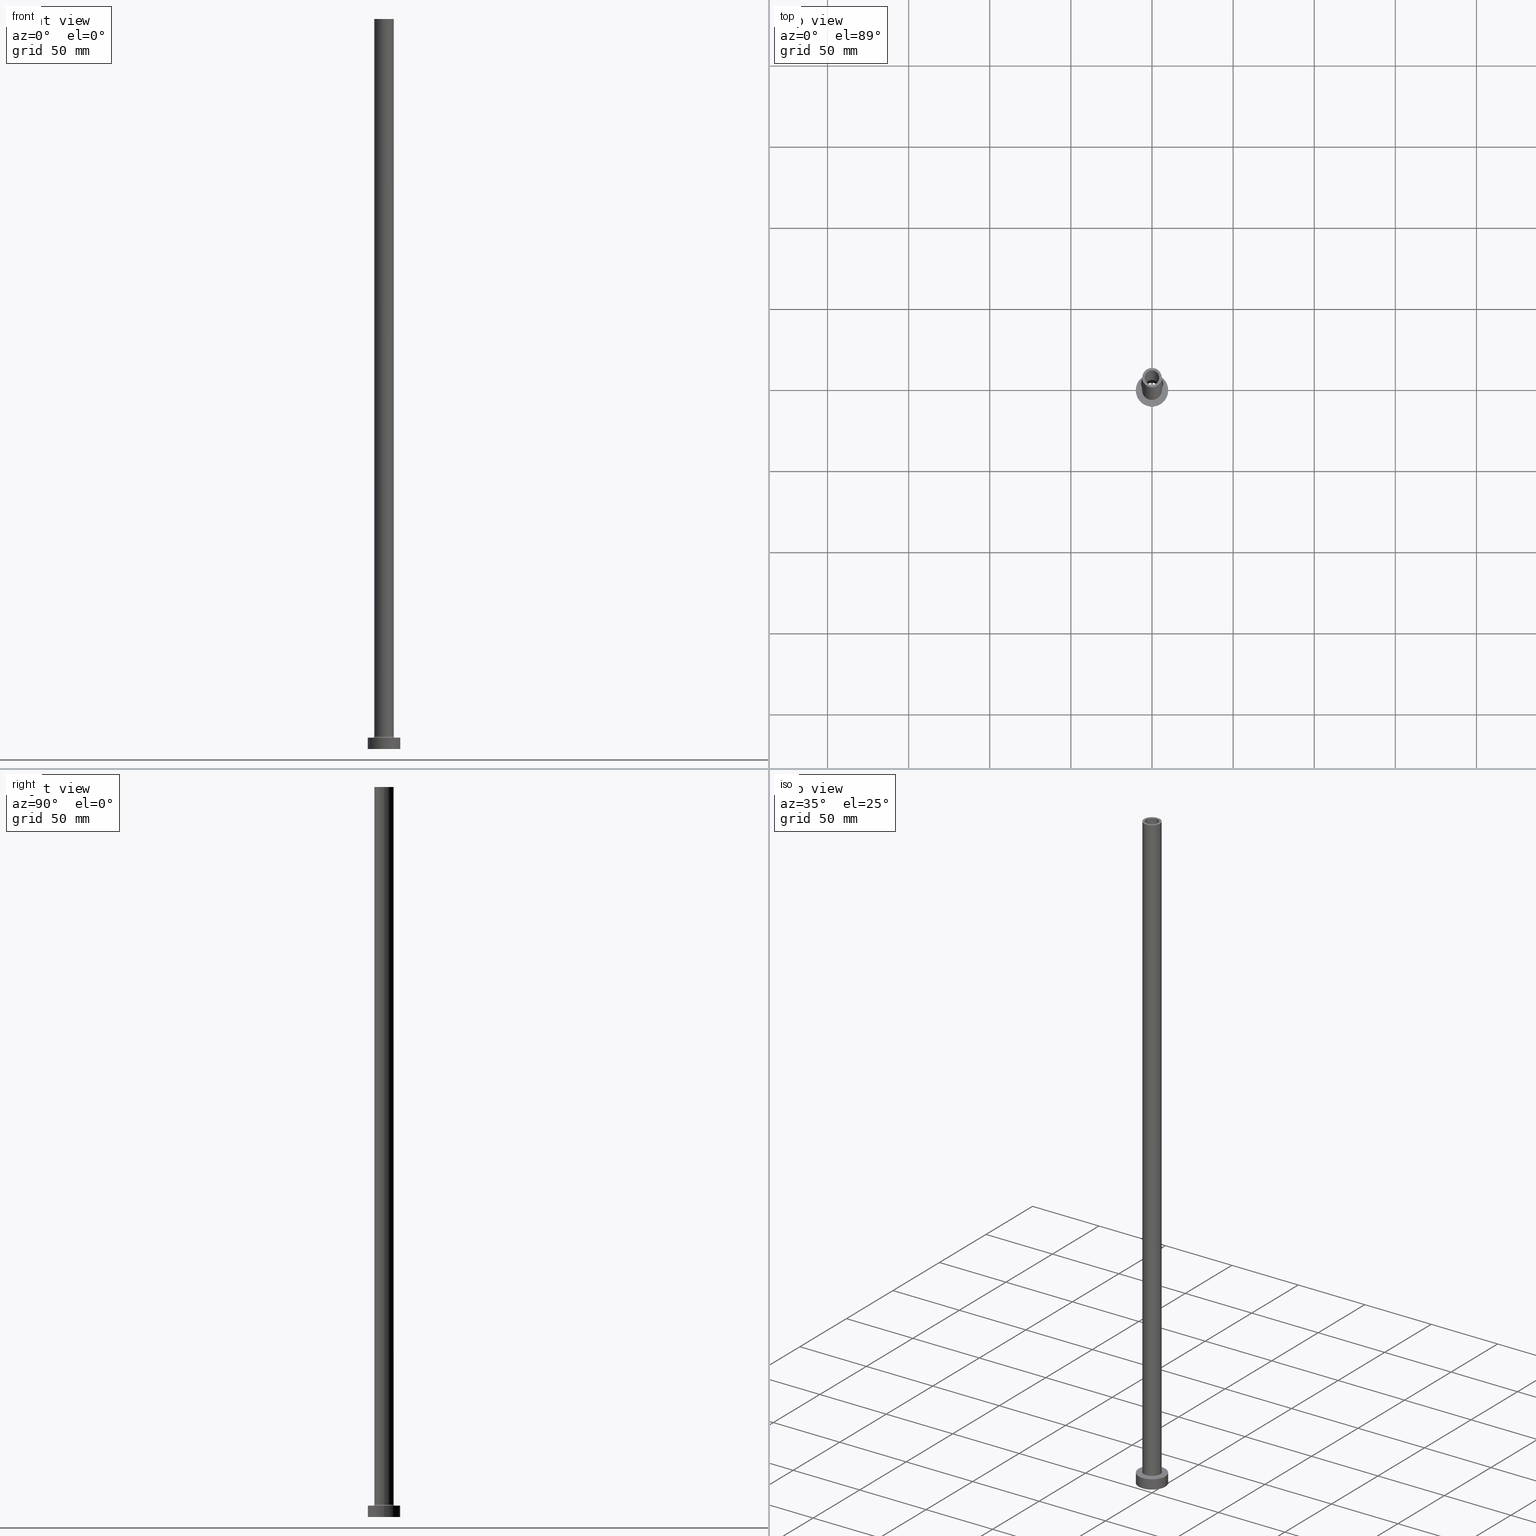
[diagram: canonical four-view strip — front | top / right | iso, engineering-drawing reading convention]
A machine part, canonical four-view strip (front | top / right | iso — engineering-drawing reading convention). The complete STEP part file that produces these views, byte-faithful:
ISO-10303-21;
HEADER;
FILE_DESCRIPTION (( 'STEP AP203' ),
    '1' );
FILE_NAME ('4599.STEP',
    '2023-02-13T11:01:02',
    ( '' ),
    ( '' ),
    'SwSTEP 2.0',
    'SolidWorks 2019',
    '' );
FILE_SCHEMA (( 'CONFIG_CONTROL_DESIGN' ));
ENDSEC;

DATA;
#1 = EDGE_CURVE ( 'NONE', #226, #153, #145, .T. ) ;
#2 = EDGE_LOOP ( 'NONE', ( #355, #202, #455, #453 ) ) ;
#3 = CLOSED_SHELL ( 'NONE', ( #345, #85, #403, #406, #24, #58, #232, #421, #374, #436, #386, #312, #203, #224 ) ) ;
#4 =( NAMED_UNIT ( * ) PLANE_ANGLE_UNIT ( ) SI_UNIT ( $, .RADIAN. ) );
#5 = CIRCLE ( 'NONE', #347, 4.650000000000000355 ) ;
#6 = DIRECTION ( 'NONE',  ( 0.000000000000000000, 0.000000000000000000, -1.000000000000000000 ) ) ;
#7 = EDGE_CURVE ( 'NONE', #283, #370, #154, .T. ) ;
#8 = ADVANCED_BREP_SHAPE_REPRESENTATION ( '4599', ( #129, #88 ), #11 ) ;
#9 = DIRECTION ( 'NONE',  ( -1.000000000000000000, 0.000000000000000000, 0.000000000000000000 ) ) ;
#10 = DIRECTION ( 'NONE',  ( 1.000000000000000000, 0.000000000000000000, 0.000000000000000000 ) ) ;
#11 =( GEOMETRIC_REPRESENTATION_CONTEXT ( 3 ) GLOBAL_UNCERTAINTY_ASSIGNED_CONTEXT ( ( #215 ) ) GLOBAL_UNIT_ASSIGNED_CONTEXT ( ( #124, #4, #433 ) ) REPRESENTATION_CONTEXT ( 'NONE', 'WORKASPACE' ) );
#12 = APPROVAL_PERSON_ORGANIZATION ( #378, #103, #73 ) ;
#13 = PRODUCT_RELATED_PRODUCT_CATEGORY ( 'detail', '', ( #166 ) ) ;
#14 = DIRECTION ( 'NONE',  ( 1.000000000000000000, 0.000000000000000000, 0.000000000000000000 ) ) ;
#15 = DIRECTION ( 'NONE',  ( -1.000000000000000000, 1.224646799147353454E-16, 0.000000000000000000 ) ) ;
#16 = PERSON_AND_ORGANIZATION_ROLE ( 'design_owner' ) ;
#17 = DIRECTION ( 'NONE',  ( -0.000000000000000000, -0.000000000000000000, -1.000000000000000000 ) ) ;
#18 = EDGE_LOOP ( 'NONE', ( #35, #78 ) ) ;
#19 = DATE_AND_TIME ( #348, #172 ) ;
#20 = DIRECTION ( 'NONE',  ( 0.000000000000000000, -1.000000000000000000, 0.000000000000000000 ) ) ;
#21 = TOROIDAL_SURFACE ( 'NONE', #164, 6.700000000000001066, 0.6999999999999999556 ) ;
#22 = PERSON_AND_ORGANIZATION ( #138, #233 ) ;
#23 = APPROVAL_PERSON_ORGANIZATION ( #274, #276, #92 ) ;
#24 = ADVANCED_FACE ( 'NONE', ( #113 ), #392, .T. ) ;
#25 = CARTESIAN_POINT ( 'NONE',  ( 4.650000000000000355, 5.694607616035192869E-16, 0.000000000000000000 ) ) ;
#26 = COORDINATED_UNIVERSAL_TIME_OFFSET ( 1, 0, .AHEAD. ) ;
#27 = DIRECTION ( 'NONE',  ( 0.000000000000000000, 0.000000000000000000, -1.000000000000000000 ) ) ;
#28 = CIRCLE ( 'NONE', #259, 0.7000000000000000666 ) ;
#29 = EDGE_CURVE ( 'NONE', #427, #420, #400, .T. ) ;
#30 = DIRECTION ( 'NONE',  ( 0.000000000000000000, 0.000000000000000000, -1.000000000000000000 ) ) ;
#31 = DATE_AND_TIME ( #459, #101 ) ;
#32 = DIRECTION ( 'NONE',  ( -0.000000000000000000, -0.000000000000000000, -1.000000000000000000 ) ) ;
#33 = ORIENTED_EDGE ( 'NONE', *, *, #336, .F. ) ;
#34 = DIRECTION ( 'NONE',  ( 0.000000000000000000, 0.000000000000000000, 1.000000000000000000 ) ) ;
#35 = ORIENTED_EDGE ( 'NONE', *, *, #417, .F. ) ;
#36 = EDGE_LOOP ( 'NONE', ( #360, #461, #394, #287 ) ) ;
#37 = CARTESIAN_POINT ( 'NONE',  ( 0.000000000000000000, 0.000000000000000000, 450.0000000000000000 ) ) ;
#38 = ORIENTED_EDGE ( 'NONE', *, *, #369, .T. ) ;
#39 = VERTEX_POINT ( 'NONE', #122 ) ;
#40 = PLANE ( 'NONE',  #416 ) ;
#41 = DIRECTION ( 'NONE',  ( 1.000000000000000000, 0.000000000000000000, 0.000000000000000000 ) ) ;
#42 = FACE_BOUND ( 'NONE', #317, .T. ) ;
#43 = EDGE_CURVE ( 'NONE', #226, #39, #333, .T. ) ;
#44 = CIRCLE ( 'NONE', #366, 4.500000000000000000 ) ;
#45 = DIRECTION ( 'NONE',  ( -1.000000000000000000, 0.000000000000000000, 0.000000000000000000 ) ) ;
#46 = EDGE_LOOP ( 'NONE', ( #117, #38 ) ) ;
#47 = AXIS2_PLACEMENT_3D ( 'NONE', #297, #438, #120 ) ;
#48 = ORIENTED_EDGE ( 'NONE', *, *, #196, .T. ) ;
#49 = CIRCLE ( 'NONE', #373, 6.000000000000000888 ) ;
#50 = SECURITY_CLASSIFICATION ( '', '', #241 ) ;
#51 = PRODUCT_DEFINITION ( 'NEZN�M�', '', #185, #230 ) ;
#52 = PERSON_AND_ORGANIZATION_ROLE ( 'creator' ) ;
#53 = VERTEX_POINT ( 'NONE', #308 ) ;
#54 = DATE_TIME_ROLE ( 'classification_date' ) ;
#55 = DIRECTION ( 'NONE',  ( 0.000000000000000000, 0.000000000000000000, 1.000000000000000000 ) ) ;
#56 = VECTOR ( 'NONE', #194, 1000.000000000000000 ) ;
#57 = CARTESIAN_POINT ( 'NONE',  ( -4.650000000000000355, 0.000000000000000000, 0.000000000000000000 ) ) ;
#58 = ADVANCED_FACE ( 'NONE', ( #234 ), #331, .T. ) ;
#59 = APPLICATION_CONTEXT ( 'configuration controlled 3d designs of mechanical parts and assemblies' ) ;
#60 = AXIS2_PLACEMENT_3D ( 'NONE', #405, #306, #14 ) ;
#61 = APPROVAL_DATE_TIME ( #100, #276 ) ;
#62 = LINE ( 'NONE', #140, #439 ) ;
#63 = PERSON_AND_ORGANIZATION_ROLE ( 'creator' ) ;
#64 = DIRECTION ( 'NONE',  ( 0.000000000000000000, 0.000000000000000000, 1.000000000000000000 ) ) ;
#65 = EDGE_CURVE ( 'NONE', #153, #226, #302, .T. ) ;
#66 = CARTESIAN_POINT ( 'NONE',  ( 0.000000000000000000, 0.000000000000000000, 418.1521861300697651 ) ) ;
#67 = AXIS2_PLACEMENT_3D ( 'NONE', #290, #292, #426 ) ;
#68 = ORIENTED_EDGE ( 'NONE', *, *, #147, .F. ) ;
#69 = CIRCLE ( 'NONE', #280, 4.650000000000000355 ) ;
#70 = DIRECTION ( 'NONE',  ( 0.000000000000000000, 0.000000000000000000, 1.000000000000000000 ) ) ;
#71 = APPROVAL_PERSON_ORGANIZATION ( #135, #244, #211 ) ;
#72 = ORIENTED_EDGE ( 'NONE', *, *, #91, .F. ) ;
#73 = APPROVAL_ROLE ( '' ) ;
#74 = DIRECTION ( 'NONE',  ( 0.000000000000000000, 0.000000000000000000, 1.000000000000000000 ) ) ;
#75 = VERTEX_POINT ( 'NONE', #229 ) ;
#76 = EDGE_CURVE ( 'NONE', #191, #420, #413, .T. ) ;
#77 = ORIENTED_EDGE ( 'NONE', *, *, #65, .F. ) ;
#78 = ORIENTED_EDGE ( 'NONE', *, *, #298, .F. ) ;
#79 = DIRECTION ( 'NONE',  ( 1.000000000000000000, 0.000000000000000000, 0.000000000000000000 ) ) ;
#80 = CARTESIAN_POINT ( 'NONE',  ( 0.000000000000000000, 0.000000000000000000, 7.000000000000000000 ) ) ;
#81 = EDGE_LOOP ( 'NONE', ( #323, #240 ) ) ;
#82 = FACE_BOUND ( 'NONE', #81, .T. ) ;
#83 = ORIENTED_EDGE ( 'NONE', *, *, #384, .T. ) ;
#84 = EDGE_LOOP ( 'NONE', ( #72, #425, #262, #410 ) ) ;
#85 = ADVANCED_FACE ( 'NONE', ( #365 ), #160, .F. ) ;
#86 = CARTESIAN_POINT ( 'NONE',  ( 0.000000000000000000, 0.000000000000000000, 405.0000000000000000 ) ) ;
#87 = CARTESIAN_POINT ( 'NONE',  ( 0.000000000000000000, 0.000000000000000000, 7.699999999999985079 ) ) ;
#88 = AXIS2_PLACEMENT_3D ( 'NONE', #414, #206, #343 ) ;
#89 = DIRECTION ( 'NONE',  ( -0.000000000000000000, -0.000000000000000000, -1.000000000000000000 ) ) ;
#90 = CARTESIAN_POINT ( 'NONE',  ( -10.00000000000000000, 0.000000000000000000, 7.000000000000000000 ) ) ;
#91 = EDGE_CURVE ( 'NONE', #370, #75, #98, .T. ) ;
#92 = APPROVAL_ROLE ( '' ) ;
#93 = AXIS2_PLACEMENT_3D ( 'NONE', #269, #332, #45 ) ;
#94 = COORDINATED_UNIVERSAL_TIME_OFFSET ( 1, 0, .AHEAD. ) ;
#95 = DIRECTION ( 'NONE',  ( -1.000000000000000000, 0.000000000000000000, 0.000000000000000000 ) ) ;
#96 = CC_DESIGN_PERSON_AND_ORGANIZATION_ASSIGNMENT ( #310, #125, ( #185 ) ) ;
#97 = MECHANICAL_CONTEXT ( 'NONE', #111, 'mechanical' ) ;
#98 = LINE ( 'NONE', #242, #335 ) ;
#99 = AXIS2_PLACEMENT_3D ( 'NONE', #173, #137, #95 ) ;
#100 = DATE_AND_TIME ( #380, #246 ) ;
#101 = LOCAL_TIME ( 12, 1, 2.000000000000000000, #183 ) ;
#102 = CARTESIAN_POINT ( 'NONE',  ( -10.00000000000000000, 0.000000000000000000, 7.000000000000000000 ) ) ;
#103 = APPROVAL ( #252, 'NEUR�EN�' ) ;
#104 = ORIENTED_EDGE ( 'NONE', *, *, #265, .T. ) ;
#105 = CARTESIAN_POINT ( 'NONE',  ( 0.000000000000000000, 0.000000000000000000, 450.0000000000000000 ) ) ;
#106 = APPROVAL_DATE_TIME ( #31, #103 ) ;
#107 = CARTESIAN_POINT ( 'NONE',  ( 0.000000000000000000, 0.000000000000000000, 7.000000000000000000 ) ) ;
#108 = CIRCLE ( 'NONE', #139, 6.700000000000001066 ) ;
#109 = ORIENTED_EDGE ( 'NONE', *, *, #141, .T. ) ;
#110 = EDGE_CURVE ( 'NONE', #370, #283, #390, .T. ) ;
#111 = APPLICATION_CONTEXT ( 'configuration controlled 3d designs of mechanical parts and assemblies' ) ;
#112 = ORIENTED_EDGE ( 'NONE', *, *, #321, .T. ) ;
#113 = FACE_OUTER_BOUND ( 'NONE', #424, .T. ) ;
#114 = ORIENTED_EDGE ( 'NONE', *, *, #7, .T. ) ;
#115 = DIRECTION ( 'NONE',  ( 1.000000000000000000, 0.000000000000000000, 0.000000000000000000 ) ) ;
#116 = VECTOR ( 'NONE', #279, 1000.000000000000000 ) ;
#117 = ORIENTED_EDGE ( 'NONE', *, *, #130, .T. ) ;
#118 = EDGE_LOOP ( 'NONE', ( #187, #342 ) ) ;
#119 = CARTESIAN_POINT ( 'NONE',  ( -6.000000000000000888, 0.000000000000000000, 7.699999999999985079 ) ) ;
#120 = DIRECTION ( 'NONE',  ( 1.000000000000000000, 0.000000000000000000, 0.000000000000000000 ) ) ;
#121 = DIRECTION ( 'NONE',  ( 0.000000000000000000, 0.000000000000000000, -1.000000000000000000 ) ) ;
#122 = CARTESIAN_POINT ( 'NONE',  ( -10.00000000000000000, 0.000000000000000000, 0.000000000000000000 ) ) ;
#123 = ORIENTED_EDGE ( 'NONE', *, *, #29, .F. ) ;
#124 =( LENGTH_UNIT ( ) NAMED_UNIT ( * ) SI_UNIT ( .MILLI., .METRE. ) );
#125 = PERSON_AND_ORGANIZATION_ROLE ( 'design_supplier' ) ;
#126 = DIRECTION ( 'NONE',  ( 0.000000000000000000, 0.000000000000000000, 1.000000000000000000 ) ) ;
#127 = ORIENTED_EDGE ( 'NONE', *, *, #452, .F. ) ;
#128 = CIRCLE ( 'NONE', #60, 4.650000000000000355 ) ;
#129 = MANIFOLD_SOLID_BREP ( 'Odebrat vysunut�m4', #3 ) ;
#130 = EDGE_CURVE ( 'NONE', #388, #75, #44, .T. ) ;
#131 = CC_DESIGN_SECURITY_CLASSIFICATION ( #50, ( #185 ) ) ;
#132 = PLANE ( 'NONE',  #245 ) ;
#133 = CARTESIAN_POINT ( 'NONE',  ( 6.000000000000000888, 7.347880794884120722E-16, 450.0000000000000000 ) ) ;
#134 = ORIENTED_EDGE ( 'NONE', *, *, #141, .F. ) ;
#135 = PERSON_AND_ORGANIZATION ( #138, #233 ) ;
#136 = AXIS2_PLACEMENT_3D ( 'NONE', #301, #121, #268 ) ;
#137 = DIRECTION ( 'NONE',  ( 0.000000000000000000, 0.000000000000000000, -1.000000000000000000 ) ) ;
#138 = PERSON ( 'NEUR�EN�', 'NEUR�EN�', 'NEUR�EN�', ('NEUR�EN�'), ('NEUR�EN�'), ('NEUR�EN�') ) ;
#139 = AXIS2_PLACEMENT_3D ( 'NONE', #107, #32, #318 ) ;
#140 = CARTESIAN_POINT ( 'NONE',  ( -6.000000000000000888, 0.000000000000000000, 450.0000000000000000 ) ) ;
#141 = EDGE_CURVE ( 'NONE', #284, #39, #423, .T. ) ;
#142 = VERTEX_POINT ( 'NONE', #57 ) ;
#143 = CARTESIAN_POINT ( 'NONE',  ( 0.000000000000000000, 0.000000000000000000, 450.0000000000000000 ) ) ;
#144 = DIRECTION ( 'NONE',  ( -1.000000000000000000, 0.000000000000000000, 0.000000000000000000 ) ) ;
#145 = CIRCLE ( 'NONE', #285, 10.00000000000000000 ) ;
#146 = ORIENTED_EDGE ( 'NONE', *, *, #196, .F. ) ;
#147 = EDGE_CURVE ( 'NONE', #305, #142, #272, .T. ) ;
#148 = SHAPE_DEFINITION_REPRESENTATION ( #371, #8 ) ;
#149 = ORIENTED_EDGE ( 'NONE', *, *, #257, .F. ) ;
#150 = FACE_OUTER_BOUND ( 'NONE', #198, .T. ) ;
#151 = CARTESIAN_POINT ( 'NONE',  ( 0.000000000000000000, 0.000000000000000000, 7.000000000000000000 ) ) ;
#152 = ORIENTED_EDGE ( 'NONE', *, *, #76, .T. ) ;
#153 = VERTEX_POINT ( 'NONE', #451 ) ;
#154 = CIRCLE ( 'NONE', #67, 4.500000000000000000 ) ;
#155 = ORIENTED_EDGE ( 'NONE', *, *, #361, .F. ) ;
#156 = DIRECTION ( 'NONE',  ( 0.000000000000000000, 0.000000000000000000, 1.000000000000000000 ) ) ;
#157 = AXIS2_PLACEMENT_3D ( 'NONE', #105, #207, #445 ) ;
#158 = CARTESIAN_POINT ( 'NONE',  ( -4.500000000000000000, 0.000000000000000000, 405.0000000000000000 ) ) ;
#159 = CARTESIAN_POINT ( 'NONE',  ( 0.000000000000000000, 0.000000000000000000, 0.000000000000000000 ) ) ;
#160 = CYLINDRICAL_SURFACE ( 'NONE', #136, 4.650000000000000355 ) ;
#161 = CC_DESIGN_PERSON_AND_ORGANIZATION_ASSIGNMENT ( #340, #52, ( #185 ) ) ;
#162 = DIRECTION ( 'NONE',  ( 0.000000000000000000, 0.000000000000000000, 1.000000000000000000 ) ) ;
#163 = DIRECTION ( 'NONE',  ( 1.224646799147353207E-16, 1.000000000000000000, -0.000000000000000000 ) ) ;
#164 = AXIS2_PLACEMENT_3D ( 'NONE', #362, #300, #10 ) ;
#165 = VERTEX_POINT ( 'NONE', #25 ) ;
#166 = PRODUCT ( '4599', '4599', '', ( #97 ) ) ;
#167 = DIRECTION ( 'NONE',  ( 0.000000000000000000, 0.000000000000000000, 1.000000000000000000 ) ) ;
#168 = ORIENTED_EDGE ( 'NONE', *, *, #169, .T. ) ;
#169 = EDGE_CURVE ( 'NONE', #309, #221, #339, .T. ) ;
#170 = COORDINATED_UNIVERSAL_TIME_OFFSET ( 1, 0, .AHEAD. ) ;
#171 = DIRECTION ( 'NONE',  ( 1.000000000000000000, 0.000000000000000000, 0.000000000000000000 ) ) ;
#172 = LOCAL_TIME ( 12, 1, 2.000000000000000000, #236 ) ;
#173 = CARTESIAN_POINT ( 'NONE',  ( 0.000000000000000000, 0.000000000000000000, 450.0000000000000000 ) ) ;
#174 = APPLICATION_PROTOCOL_DEFINITION ( 'international standard', 'config_control_design', 1994, #59 ) ;
#175 = DIRECTION ( 'NONE',  ( 1.000000000000000000, 0.000000000000000000, 0.000000000000000000 ) ) ;
#176 = EDGE_CURVE ( 'NONE', #309, #427, #62, .T. ) ;
#177 = CARTESIAN_POINT ( 'NONE',  ( -4.650000000000000355, 0.000000000000000000, 418.1521861300697651 ) ) ;
#178 = FACE_OUTER_BOUND ( 'NONE', #444, .T. ) ;
#179 = CC_DESIGN_PERSON_AND_ORGANIZATION_ASSIGNMENT ( #209, #63, ( #51 ) ) ;
#180 = ORIENTED_EDGE ( 'NONE', *, *, #354, .F. ) ;
#181 = CARTESIAN_POINT ( 'NONE',  ( -6.000000000000000888, 0.000000000000000000, 450.0000000000000000 ) ) ;
#182 = ORIENTED_EDGE ( 'NONE', *, *, #417, .T. ) ;
#183 = COORDINATED_UNIVERSAL_TIME_OFFSET ( 1, 0, .AHEAD. ) ;
#184 = AXIS2_PLACEMENT_3D ( 'NONE', #349, #239, #243 ) ;
#185 = PRODUCT_DEFINITION_FORMATION_WITH_SPECIFIED_SOURCE ( 'LIBOVOLN�', '', #166, .NOT_KNOWN. ) ;
#186 = ORIENTED_EDGE ( 'NONE', *, *, #176, .F. ) ;
#187 = ORIENTED_EDGE ( 'NONE', *, *, #1, .T. ) ;
#188 = CC_DESIGN_DATE_AND_TIME_ASSIGNMENT ( #375, #54, ( #50 ) ) ;
#189 = CARTESIAN_POINT ( 'NONE',  ( 10.00000000000000000, 1.224646799147353256E-15, 7.000000000000000000 ) ) ;
#190 = ORIENTED_EDGE ( 'NONE', *, *, #257, .T. ) ;
#191 = VERTEX_POINT ( 'NONE', #418 ) ;
#192 = DIRECTION ( 'NONE',  ( -0.000000000000000000, -0.000000000000000000, -1.000000000000000000 ) ) ;
#193 = CARTESIAN_POINT ( 'NONE',  ( 4.500000000000000000, 5.510910596163087583E-16, 450.0000000000000000 ) ) ;
#194 = DIRECTION ( 'NONE',  ( -0.000000000000000000, -0.000000000000000000, -1.000000000000000000 ) ) ;
#195 = LINE ( 'NONE', #225, #457 ) ;
#196 = EDGE_CURVE ( 'NONE', #142, #165, #5, .T. ) ;
#197 = DIRECTION ( 'NONE',  ( -1.000000000000000000, 0.000000000000000000, 0.000000000000000000 ) ) ;
#198 = EDGE_LOOP ( 'NONE', ( #263, #249, #326, #48 ) ) ;
#199 = CARTESIAN_POINT ( 'NONE',  ( 0.000000000000000000, 0.000000000000000000, 450.0000000000000000 ) ) ;
#200 = AXIS2_PLACEMENT_3D ( 'NONE', #460, #223, #367 ) ;
#201 = CC_DESIGN_APPROVAL ( #103, ( #50 ) ) ;
#202 = ORIENTED_EDGE ( 'NONE', *, *, #169, .F. ) ;
#203 = ADVANCED_FACE ( 'NONE', ( #247, #313 ), #132, .F. ) ;
#204 = CALENDAR_DATE ( 2023, 13, 2 ) ;
#205 = DIRECTION ( 'NONE',  ( 1.000000000000000000, 0.000000000000000000, -0.000000000000000000 ) ) ;
#206 = DIRECTION ( 'NONE',  ( 0.000000000000000000, 0.000000000000000000, 1.000000000000000000 ) ) ;
#207 = DIRECTION ( 'NONE',  ( 0.000000000000000000, 0.000000000000000000, 1.000000000000000000 ) ) ;
#208 = VECTOR ( 'NONE', #253, 1000.000000000000000 ) ;
#209 = PERSON_AND_ORGANIZATION ( #138, #233 ) ;
#210 = DIRECTION ( 'NONE',  ( 0.000000000000000000, 0.000000000000000000, 1.000000000000000000 ) ) ;
#211 = APPROVAL_ROLE ( '' ) ;
#212 = CARTESIAN_POINT ( 'NONE',  ( 0.000000000000000000, 0.000000000000000000, 7.000000000000000000 ) ) ;
#213 = DIRECTION ( 'NONE',  ( 0.000000000000000000, 0.000000000000000000, -1.000000000000000000 ) ) ;
#214 = EDGE_LOOP ( 'NONE', ( #152, #322 ) ) ;
#215 = UNCERTAINTY_MEASURE_WITH_UNIT (LENGTH_MEASURE( 1.000000000000000082E-05 ), #124, 'distance_accuracy_value', 'NONE');
#216 = EDGE_CURVE ( 'NONE', #427, #53, #393, .T. ) ;
#217 = CARTESIAN_POINT ( 'NONE',  ( 0.000000000000000000, 0.000000000000000000, 405.0000000000000000 ) ) ;
#218 = EDGE_LOOP ( 'NONE', ( #168, #104 ) ) ;
#219 = DIRECTION ( 'NONE',  ( 0.000000000000000000, 0.000000000000000000, 1.000000000000000000 ) ) ;
#220 = AXIS2_PLACEMENT_3D ( 'NONE', #270, #399, #434 ) ;
#221 = VERTEX_POINT ( 'NONE', #133 ) ;
#222 = VECTOR ( 'NONE', #6, 1000.000000000000000 ) ;
#223 = DIRECTION ( 'NONE',  ( 0.000000000000000000, 0.000000000000000000, 1.000000000000000000 ) ) ;
#224 = ADVANCED_FACE ( 'NONE', ( #415 ), #277, .F. ) ;
#225 = CARTESIAN_POINT ( 'NONE',  ( 6.000000000000000888, 7.347880794884120722E-16, 450.0000000000000000 ) ) ;
#226 = VERTEX_POINT ( 'NONE', #102 ) ;
#227 = EDGE_LOOP ( 'NONE', ( #33, #134 ) ) ;
#228 = FACE_OUTER_BOUND ( 'NONE', #377, .T. ) ;
#229 = CARTESIAN_POINT ( 'NONE',  ( 4.500000000000000000, 5.510910596163087583E-16, 405.0000000000000000 ) ) ;
#230 = DESIGN_CONTEXT ( 'detailed design', #59, 'design' ) ;
#231 = TOROIDAL_SURFACE ( 'NONE', #320, 6.700000000000001066, 0.6999999999999999556 ) ;
#232 = ADVANCED_FACE ( 'NONE', ( #412, #383 ), #341, .T. ) ;
#233 = ORGANIZATION ( 'NEUR�EN�', 'NEUR�EN�', '' ) ;
#234 = FACE_OUTER_BOUND ( 'NONE', #36, .T. ) ;
#235 = CARTESIAN_POINT ( 'NONE',  ( -4.500000000000000000, 0.000000000000000000, 450.0000000000000000 ) ) ;
#236 = COORDINATED_UNIVERSAL_TIME_OFFSET ( 1, 0, .AHEAD. ) ;
#237 = AXIS2_PLACEMENT_3D ( 'NONE', #212, #55, #205 ) ;
#238 = APPLICATION_PROTOCOL_DEFINITION ( 'international standard', 'config_control_design', 1994, #111 ) ;
#239 = DIRECTION ( 'NONE',  ( 0.000000000000000000, 0.000000000000000000, 1.000000000000000000 ) ) ;
#240 = ORIENTED_EDGE ( 'NONE', *, *, #110, .F. ) ;
#241 = SECURITY_CLASSIFICATION_LEVEL ( 'unclassified' ) ;
#242 = CARTESIAN_POINT ( 'NONE',  ( 4.500000000000000000, 5.510910596163087583E-16, 450.0000000000000000 ) ) ;
#243 = DIRECTION ( 'NONE',  ( 1.000000000000000000, 0.000000000000000000, 0.000000000000000000 ) ) ;
#244 = APPROVAL ( #278, 'NEUR�EN�' ) ;
#245 = AXIS2_PLACEMENT_3D ( 'NONE', #281, #376, #409 ) ;
#246 = LOCAL_TIME ( 12, 1, 2.000000000000000000, #170 ) ;
#247 = FACE_BOUND ( 'NONE', #46, .T. ) ;
#248 = CARTESIAN_POINT ( 'NONE',  ( 0.000000000000000000, 0.000000000000000000, 7.699999999999985079 ) ) ;
#249 = ORIENTED_EDGE ( 'NONE', *, *, #298, .T. ) ;
#250 = ORIENTED_EDGE ( 'NONE', *, *, #361, .T. ) ;
#251 = CIRCLE ( 'NONE', #295, 10.00000000000000000 ) ;
#252 = APPROVAL_STATUS ( 'not_yet_approved' ) ;
#253 = DIRECTION ( 'NONE',  ( -0.000000000000000000, -0.000000000000000000, -1.000000000000000000 ) ) ;
#254 = EDGE_LOOP ( 'NONE', ( #458, #397, #442, #149 ) ) ;
#255 = CYLINDRICAL_SURFACE ( 'NONE', #358, 4.500000000000000000 ) ;
#256 = LINE ( 'NONE', #419, #407 ) ;
#257 = EDGE_CURVE ( 'NONE', #53, #191, #28, .T. ) ;
#258 = ORIENTED_EDGE ( 'NONE', *, *, #452, .T. ) ;
#259 = AXIS2_PLACEMENT_3D ( 'NONE', #344, #20, #454 ) ;
#260 = ORIENTED_EDGE ( 'NONE', *, *, #43, .F. ) ;
#261 = CYLINDRICAL_SURFACE ( 'NONE', #450, 4.650000000000000355 ) ;
#262 = ORIENTED_EDGE ( 'NONE', *, *, #443, .T. ) ;
#263 = ORIENTED_EDGE ( 'NONE', *, *, #321, .F. ) ;
#264 = DIRECTION ( 'NONE',  ( 1.000000000000000000, 0.000000000000000000, 0.000000000000000000 ) ) ;
#265 = EDGE_CURVE ( 'NONE', #221, #309, #337, .T. ) ;
#266 = FACE_OUTER_BOUND ( 'NONE', #227, .T. ) ;
#267 = AXIS2_PLACEMENT_3D ( 'NONE', #199, #435, #437 ) ;
#268 = DIRECTION ( 'NONE',  ( -1.000000000000000000, 0.000000000000000000, 0.000000000000000000 ) ) ;
#269 = CARTESIAN_POINT ( 'NONE',  ( 0.000000000000000000, 0.000000000000000000, 450.0000000000000000 ) ) ;
#270 = CARTESIAN_POINT ( 'NONE',  ( 0.000000000000000000, 0.000000000000000000, 7.000000000000000000 ) ) ;
#271 = PERSON_AND_ORGANIZATION ( #138, #233 ) ;
#272 = LINE ( 'NONE', #177, #116 ) ;
#273 = VERTEX_POINT ( 'NONE', #286 ) ;
#274 = PERSON_AND_ORGANIZATION ( #138, #233 ) ;
#275 = CARTESIAN_POINT ( 'NONE',  ( 0.000000000000000000, 0.000000000000000000, 405.0000000000000000 ) ) ;
#276 = APPROVAL ( #350, 'NEUR�EN�' ) ;
#277 = CYLINDRICAL_SURFACE ( 'NONE', #99, 4.500000000000000000 ) ;
#278 = APPROVAL_STATUS ( 'not_yet_approved' ) ;
#279 = DIRECTION ( 'NONE',  ( 0.000000000000000000, 0.000000000000000000, -1.000000000000000000 ) ) ;
#280 = AXIS2_PLACEMENT_3D ( 'NONE', #86, #167, #264 ) ;
#281 = CARTESIAN_POINT ( 'NONE',  ( 0.000000000000000000, 0.000000000000000000, 405.0000000000000000 ) ) ;
#282 = CC_DESIGN_DATE_AND_TIME_ASSIGNMENT ( #19, #447, ( #51 ) ) ;
#283 = VERTEX_POINT ( 'NONE', #289 ) ;
#284 = VERTEX_POINT ( 'NONE', #316 ) ;
#285 = AXIS2_PLACEMENT_3D ( 'NONE', #151, #319, #41 ) ;
#286 = CARTESIAN_POINT ( 'NONE',  ( 4.650000000000000355, 5.694607616035192869E-16, 405.0000000000000000 ) ) ;
#287 = ORIENTED_EDGE ( 'NONE', *, *, #336, .T. ) ;
#288 = AXIS2_PLACEMENT_3D ( 'NONE', #248, #64, #171 ) ;
#289 = CARTESIAN_POINT ( 'NONE',  ( -4.500000000000000000, 0.000000000000000000, 450.0000000000000000 ) ) ;
#290 = CARTESIAN_POINT ( 'NONE',  ( 0.000000000000000000, 0.000000000000000000, 450.0000000000000000 ) ) ;
#291 = CC_DESIGN_PERSON_AND_ORGANIZATION_ASSIGNMENT ( #271, #408, ( #50 ) ) ;
#292 = DIRECTION ( 'NONE',  ( 0.000000000000000000, 0.000000000000000000, 1.000000000000000000 ) ) ;
#293 = ORIENTED_EDGE ( 'NONE', *, *, #443, .F. ) ;
#294 = ORIENTED_EDGE ( 'NONE', *, *, #265, .F. ) ;
#295 = AXIS2_PLACEMENT_3D ( 'NONE', #387, #74, #353 ) ;
#296 = ORIENTED_EDGE ( 'NONE', *, *, #307, .T. ) ;
#297 = CARTESIAN_POINT ( 'NONE',  ( 0.000000000000000000, 0.000000000000000000, 7.000000000000000000 ) ) ;
#298 = EDGE_CURVE ( 'NONE', #273, #305, #328, .T. ) ;
#299 = CARTESIAN_POINT ( 'NONE',  ( -6.700000000000001066, 8.205133554287267548E-16, 6.999999999999992006 ) ) ;
#300 = DIRECTION ( 'NONE',  ( 0.000000000000000000, 0.000000000000000000, 1.000000000000000000 ) ) ;
#301 = CARTESIAN_POINT ( 'NONE',  ( 0.000000000000000000, 0.000000000000000000, 418.1521861300697651 ) ) ;
#302 = CIRCLE ( 'NONE', #47, 10.00000000000000000 ) ;
#303 = CYLINDRICAL_SURFACE ( 'NONE', #352, 6.000000000000000888 ) ;
#304 = AXIS2_PLACEMENT_3D ( 'NONE', #37, #34, #79 ) ;
#305 = VERTEX_POINT ( 'NONE', #428 ) ;
#306 = DIRECTION ( 'NONE',  ( -0.000000000000000000, -0.000000000000000000, -1.000000000000000000 ) ) ;
#307 = EDGE_CURVE ( 'NONE', #153, #284, #422, .T. ) ;
#308 = CARTESIAN_POINT ( 'NONE',  ( 6.000000000000000888, 7.347880794884120722E-16, 7.699999999999985079 ) ) ;
#309 = VERTEX_POINT ( 'NONE', #181 ) ;
#310 = PERSON_AND_ORGANIZATION ( #138, #233 ) ;
#311 = DIRECTION ( 'NONE',  ( -0.000000000000000000, -0.000000000000000000, -1.000000000000000000 ) ) ;
#312 = ADVANCED_FACE ( 'NONE', ( #150 ), #261, .F. ) ;
#313 = FACE_OUTER_BOUND ( 'NONE', #18, .T. ) ;
#314 = CALENDAR_DATE ( 2023, 13, 2 ) ;
#315 = CARTESIAN_POINT ( 'NONE',  ( 0.000000000000000000, 0.000000000000000000, 450.0000000000000000 ) ) ;
#316 = CARTESIAN_POINT ( 'NONE',  ( 10.00000000000000000, 1.224646799147353256E-15, 0.000000000000000000 ) ) ;
#317 = EDGE_LOOP ( 'NONE', ( #146, #127 ) ) ;
#318 = DIRECTION ( 'NONE',  ( 1.000000000000000000, 0.000000000000000000, 0.000000000000000000 ) ) ;
#319 = DIRECTION ( 'NONE',  ( 0.000000000000000000, 0.000000000000000000, 1.000000000000000000 ) ) ;
#320 = AXIS2_PLACEMENT_3D ( 'NONE', #87, #156, #334 ) ;
#321 = EDGE_CURVE ( 'NONE', #273, #165, #256, .T. ) ;
#322 = ORIENTED_EDGE ( 'NONE', *, *, #354, .T. ) ;
#323 = ORIENTED_EDGE ( 'NONE', *, *, #7, .F. ) ;
#324 = DIRECTION ( 'NONE',  ( -1.000000000000000000, 0.000000000000000000, 0.000000000000000000 ) ) ;
#325 = ORIENTED_EDGE ( 'NONE', *, *, #130, .F. ) ;
#326 = ORIENTED_EDGE ( 'NONE', *, *, #147, .T. ) ;
#327 = LINE ( 'NONE', #235, #222 ) ;
#328 = CIRCLE ( 'NONE', #401, 4.650000000000000355 ) ;
#329 = LOCAL_TIME ( 12, 1, 2.000000000000000000, #26 ) ;
#330 = PLANE ( 'NONE',  #267 ) ;
#331 = CYLINDRICAL_SURFACE ( 'NONE', #356, 10.00000000000000000 ) ;
#332 = DIRECTION ( 'NONE',  ( -0.000000000000000000, -0.000000000000000000, -1.000000000000000000 ) ) ;
#333 = LINE ( 'NONE', #90, #56 ) ;
#334 = DIRECTION ( 'NONE',  ( 1.000000000000000000, 0.000000000000000000, 0.000000000000000000 ) ) ;
#335 = VECTOR ( 'NONE', #27, 1000.000000000000000 ) ;
#336 = EDGE_CURVE ( 'NONE', #39, #284, #251, .T. ) ;
#337 = CIRCLE ( 'NONE', #304, 6.000000000000000888 ) ;
#338 = FACE_OUTER_BOUND ( 'NONE', #218, .T. ) ;
#339 = CIRCLE ( 'NONE', #157, 6.000000000000000888 ) ;
#340 = PERSON_AND_ORGANIZATION ( #138, #233 ) ;
#341 = PLANE ( 'NONE',  #237 ) ;
#342 = ORIENTED_EDGE ( 'NONE', *, *, #65, .T. ) ;
#343 = DIRECTION ( 'NONE',  ( 1.000000000000000000, 0.000000000000000000, 0.000000000000000000 ) ) ;
#344 = CARTESIAN_POINT ( 'NONE',  ( 6.700000000000001066, 0.000000000000000000, 7.699999999999985079 ) ) ;
#345 = ADVANCED_FACE ( 'NONE', ( #178 ), #255, .F. ) ;
#346 = AXIS2_PLACEMENT_3D ( 'NONE', #80, #396, #144 ) ;
#347 = AXIS2_PLACEMENT_3D ( 'NONE', #381, #17, #175 ) ;
#348 = CALENDAR_DATE ( 2023, 13, 2 ) ;
#349 = CARTESIAN_POINT ( 'NONE',  ( 0.000000000000000000, 0.000000000000000000, 0.000000000000000000 ) ) ;
#350 = APPROVAL_STATUS ( 'not_yet_approved' ) ;
#351 = DIRECTION ( 'NONE',  ( 1.000000000000000000, 0.000000000000000000, 0.000000000000000000 ) ) ;
#352 = AXIS2_PLACEMENT_3D ( 'NONE', #398, #192, #197 ) ;
#353 = DIRECTION ( 'NONE',  ( 1.000000000000000000, 0.000000000000000000, 0.000000000000000000 ) ) ;
#354 = EDGE_CURVE ( 'NONE', #420, #191, #108, .T. ) ;
#355 = ORIENTED_EDGE ( 'NONE', *, *, #384, .F. ) ;
#356 = AXIS2_PLACEMENT_3D ( 'NONE', #404, #368, #9 ) ;
#357 = DIRECTION ( 'NONE',  ( 1.000000000000000000, 0.000000000000000000, 0.000000000000000000 ) ) ;
#358 = AXIS2_PLACEMENT_3D ( 'NONE', #143, #389, #391 ) ;
#359 = CC_DESIGN_APPROVAL ( #244, ( #185 ) ) ;
#360 = ORIENTED_EDGE ( 'NONE', *, *, #307, .F. ) ;
#361 = EDGE_CURVE ( 'NONE', #53, #427, #49, .T. ) ;
#362 = CARTESIAN_POINT ( 'NONE',  ( 0.000000000000000000, 0.000000000000000000, 7.699999999999985079 ) ) ;
#363 = ORIENTED_EDGE ( 'NONE', *, *, #91, .T. ) ;
#364 = FACE_OUTER_BOUND ( 'NONE', #2, .T. ) ;
#365 = FACE_OUTER_BOUND ( 'NONE', #432, .T. ) ;
#366 = AXIS2_PLACEMENT_3D ( 'NONE', #275, #126, #351 ) ;
#367 = DIRECTION ( 'NONE',  ( 1.000000000000000000, 0.000000000000000000, 0.000000000000000000 ) ) ;
#368 = DIRECTION ( 'NONE',  ( -0.000000000000000000, -0.000000000000000000, -1.000000000000000000 ) ) ;
#369 = EDGE_CURVE ( 'NONE', #75, #388, #430, .T. ) ;
#370 = VERTEX_POINT ( 'NONE', #193 ) ;
#371 = PRODUCT_DEFINITION_SHAPE ( 'NONE', 'NONE',  #51 ) ;
#372 = DIRECTION ( 'NONE',  ( 1.000000000000000000, 0.000000000000000000, -0.000000000000000000 ) ) ;
#373 = AXIS2_PLACEMENT_3D ( 'NONE', #456, #219, #357 ) ;
#374 = ADVANCED_FACE ( 'NONE', ( #364 ), #402, .T. ) ;
#375 = DATE_AND_TIME ( #204, #431 ) ;
#376 = DIRECTION ( 'NONE',  ( 0.000000000000000000, 0.000000000000000000, 1.000000000000000000 ) ) ;
#377 = EDGE_LOOP ( 'NONE', ( #123, #155, #190, #180 ) ) ;
#378 = PERSON_AND_ORGANIZATION ( #138, #233 ) ;
#379 = DIRECTION ( 'NONE',  ( 1.000000000000000000, 0.000000000000000000, 0.000000000000000000 ) ) ;
#380 = CALENDAR_DATE ( 2023, 13, 2 ) ;
#381 = CARTESIAN_POINT ( 'NONE',  ( 0.000000000000000000, 0.000000000000000000, 0.000000000000000000 ) ) ;
#382 = AXIS2_PLACEMENT_3D ( 'NONE', #315, #210, #379 ) ;
#383 = FACE_OUTER_BOUND ( 'NONE', #118, .T. ) ;
#384 = EDGE_CURVE ( 'NONE', #221, #53, #195, .T. ) ;
#385 = CARTESIAN_POINT ( 'NONE',  ( -6.700000000000001066, 8.205133554287267548E-16, 7.699999999999985079 ) ) ;
#386 = ADVANCED_FACE ( 'NONE', ( #228 ), #21, .F. ) ;
#387 = CARTESIAN_POINT ( 'NONE',  ( 0.000000000000000000, 0.000000000000000000, 0.000000000000000000 ) ) ;
#388 = VERTEX_POINT ( 'NONE', #158 ) ;
#389 = DIRECTION ( 'NONE',  ( 0.000000000000000000, 0.000000000000000000, -1.000000000000000000 ) ) ;
#390 = CIRCLE ( 'NONE', #382, 4.500000000000000000 ) ;
#391 = DIRECTION ( 'NONE',  ( -1.000000000000000000, 0.000000000000000000, 0.000000000000000000 ) ) ;
#392 = CYLINDRICAL_SURFACE ( 'NONE', #346, 10.00000000000000000 ) ;
#393 = CIRCLE ( 'NONE', #288, 6.000000000000000888 ) ;
#394 = ORIENTED_EDGE ( 'NONE', *, *, #43, .T. ) ;
#395 = FACE_OUTER_BOUND ( 'NONE', #429, .T. ) ;
#396 = DIRECTION ( 'NONE',  ( -0.000000000000000000, -0.000000000000000000, -1.000000000000000000 ) ) ;
#397 = ORIENTED_EDGE ( 'NONE', *, *, #29, .T. ) ;
#398 = CARTESIAN_POINT ( 'NONE',  ( 0.000000000000000000, 0.000000000000000000, 450.0000000000000000 ) ) ;
#399 = DIRECTION ( 'NONE',  ( -0.000000000000000000, -0.000000000000000000, -1.000000000000000000 ) ) ;
#400 = CIRCLE ( 'NONE', #448, 0.7000000000000000666 ) ;
#401 = AXIS2_PLACEMENT_3D ( 'NONE', #217, #70, #115 ) ;
#402 = CYLINDRICAL_SURFACE ( 'NONE', #93, 6.000000000000000888 ) ;
#403 = ADVANCED_FACE ( 'NONE', ( #441 ), #231, .F. ) ;
#404 = CARTESIAN_POINT ( 'NONE',  ( 0.000000000000000000, 0.000000000000000000, 7.000000000000000000 ) ) ;
#405 = CARTESIAN_POINT ( 'NONE',  ( 0.000000000000000000, 0.000000000000000000, 0.000000000000000000 ) ) ;
#406 = ADVANCED_FACE ( 'NONE', ( #395 ), #303, .T. ) ;
#407 = VECTOR ( 'NONE', #30, 1000.000000000000000 ) ;
#408 = PERSON_AND_ORGANIZATION_ROLE ( 'classification_officer' ) ;
#409 = DIRECTION ( 'NONE',  ( 1.000000000000000000, 0.000000000000000000, -0.000000000000000000 ) ) ;
#410 = ORIENTED_EDGE ( 'NONE', *, *, #369, .F. ) ;
#411 = APPROVAL_DATE_TIME ( #449, #244 ) ;
#412 = FACE_BOUND ( 'NONE', #214, .T. ) ;
#413 = CIRCLE ( 'NONE', #220, 6.700000000000001066 ) ;
#414 = CARTESIAN_POINT ( 'NONE',  ( 0.000000000000000000, 0.000000000000000000, 0.000000000000000000 ) ) ;
#415 = FACE_OUTER_BOUND ( 'NONE', #84, .T. ) ;
#416 = AXIS2_PLACEMENT_3D ( 'NONE', #159, #162, #372 ) ;
#417 = EDGE_CURVE ( 'NONE', #305, #273, #69, .T. ) ;
#418 = CARTESIAN_POINT ( 'NONE',  ( 6.700000000000001066, 0.000000000000000000, 6.999999999999992006 ) ) ;
#419 = CARTESIAN_POINT ( 'NONE',  ( 4.650000000000000355, 5.694607616035192869E-16, 418.1521861300697651 ) ) ;
#420 = VERTEX_POINT ( 'NONE', #299 ) ;
#421 = ADVANCED_FACE ( 'NONE', ( #42, #266 ), #40, .F. ) ;
#422 = LINE ( 'NONE', #189, #208 ) ;
#423 = CIRCLE ( 'NONE', #184, 10.00000000000000000 ) ;
#424 = EDGE_LOOP ( 'NONE', ( #77, #296, #109, #260 ) ) ;
#425 = ORIENTED_EDGE ( 'NONE', *, *, #110, .T. ) ;
#426 = DIRECTION ( 'NONE',  ( 1.000000000000000000, 0.000000000000000000, 0.000000000000000000 ) ) ;
#427 = VERTEX_POINT ( 'NONE', #119 ) ;
#428 = CARTESIAN_POINT ( 'NONE',  ( -4.650000000000000355, 0.000000000000000000, 405.0000000000000000 ) ) ;
#429 = EDGE_LOOP ( 'NONE', ( #294, #83, #250, #186 ) ) ;
#430 = CIRCLE ( 'NONE', #200, 4.500000000000000000 ) ;
#431 = LOCAL_TIME ( 12, 1, 2.000000000000000000, #94 ) ;
#432 = EDGE_LOOP ( 'NONE', ( #182, #112, #258, #68 ) ) ;
#433 =( NAMED_UNIT ( * ) SI_UNIT ( $, .STERADIAN. ) SOLID_ANGLE_UNIT ( ) );
#434 = DIRECTION ( 'NONE',  ( 1.000000000000000000, 0.000000000000000000, 0.000000000000000000 ) ) ;
#435 = DIRECTION ( 'NONE',  ( 0.000000000000000000, 0.000000000000000000, 1.000000000000000000 ) ) ;
#436 = ADVANCED_FACE ( 'NONE', ( #82, #338 ), #330, .T. ) ;
#437 = DIRECTION ( 'NONE',  ( 1.000000000000000000, 0.000000000000000000, -0.000000000000000000 ) ) ;
#438 = DIRECTION ( 'NONE',  ( 0.000000000000000000, 0.000000000000000000, 1.000000000000000000 ) ) ;
#439 = VECTOR ( 'NONE', #311, 1000.000000000000000 ) ;
#440 = CC_DESIGN_APPROVAL ( #276, ( #51 ) ) ;
#441 = FACE_OUTER_BOUND ( 'NONE', #254, .T. ) ;
#442 = ORIENTED_EDGE ( 'NONE', *, *, #76, .F. ) ;
#443 = EDGE_CURVE ( 'NONE', #283, #388, #327, .T. ) ;
#444 = EDGE_LOOP ( 'NONE', ( #114, #363, #325, #293 ) ) ;
#445 = DIRECTION ( 'NONE',  ( 1.000000000000000000, 0.000000000000000000, 0.000000000000000000 ) ) ;
#446 = CC_DESIGN_PERSON_AND_ORGANIZATION_ASSIGNMENT ( #22, #16, ( #166 ) ) ;
#447 = DATE_TIME_ROLE ( 'creation_date' ) ;
#448 = AXIS2_PLACEMENT_3D ( 'NONE', #385, #163, #15 ) ;
#449 = DATE_AND_TIME ( #314, #329 ) ;
#450 = AXIS2_PLACEMENT_3D ( 'NONE', #66, #213, #324 ) ;
#451 = CARTESIAN_POINT ( 'NONE',  ( 10.00000000000000000, 1.224646799147353256E-15, 7.000000000000000000 ) ) ;
#452 = EDGE_CURVE ( 'NONE', #165, #142, #128, .T. ) ;
#453 = ORIENTED_EDGE ( 'NONE', *, *, #216, .T. ) ;
#454 = DIRECTION ( 'NONE',  ( 0.000000000000000000, 0.000000000000000000, -1.000000000000000000 ) ) ;
#455 = ORIENTED_EDGE ( 'NONE', *, *, #176, .T. ) ;
#456 = CARTESIAN_POINT ( 'NONE',  ( 0.000000000000000000, 0.000000000000000000, 7.699999999999985079 ) ) ;
#457 = VECTOR ( 'NONE', #89, 1000.000000000000000 ) ;
#458 = ORIENTED_EDGE ( 'NONE', *, *, #216, .F. ) ;
#459 = CALENDAR_DATE ( 2023, 13, 2 ) ;
#460 = CARTESIAN_POINT ( 'NONE',  ( 0.000000000000000000, 0.000000000000000000, 405.0000000000000000 ) ) ;
#461 = ORIENTED_EDGE ( 'NONE', *, *, #1, .F. ) ;
ENDSEC;
END-ISO-10303-21;
